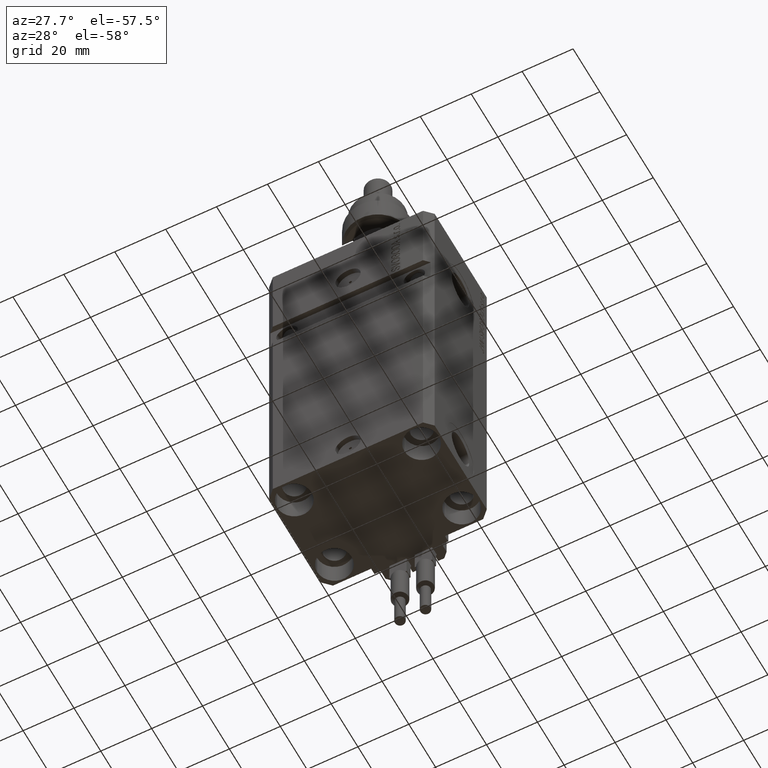
[diagram: clean part render]
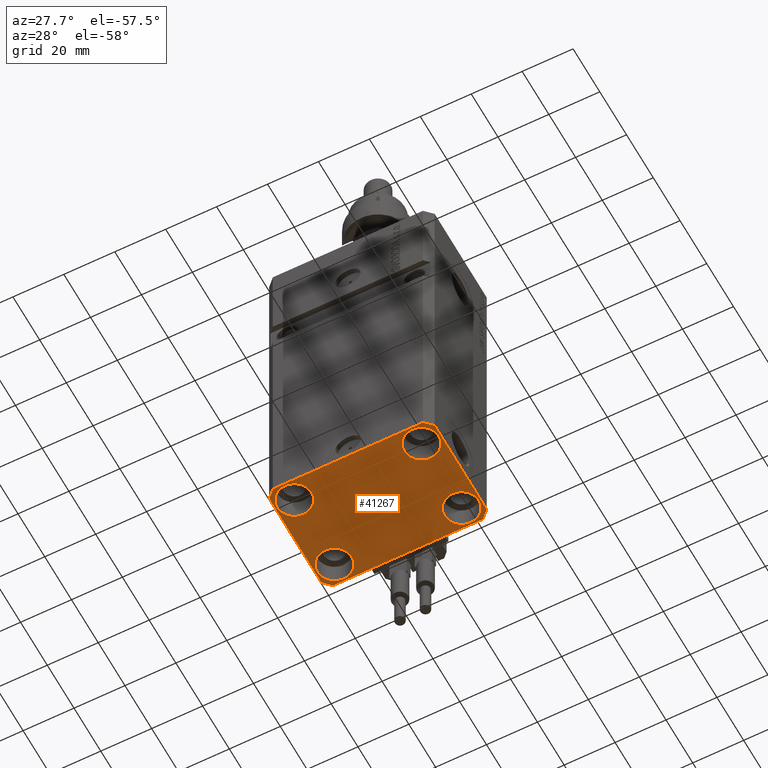
[diagram: same view with one face highlighted and labeled with its STEP entity id]
A machine part, auxiliary view. The second image highlights one B-rep face of the part: STEP entity #41267.
In plain terms, the highlighted planar face has unit normal (0, 0, 1).
Its self-contained STEP definition (entity closure, byte-faithful):
#817 = EDGE_CURVE ( 'NONE', #32567, #30131, #48013, .T. ) ;
#1035 = CARTESIAN_POINT ( 'NONE',  ( -18.24999999995845812, -15.00000000000000000, -137.0000000000000000 ) ) ;
#1851 = CARTESIAN_POINT ( 'NONE',  ( -29.49999999999650413, -22.49999999999949907, -137.0000000000000000 ) ) ;
#2044 = VECTOR ( 'NONE', #26355, 1000.000000000000000 ) ;
#2473 = EDGE_CURVE ( 'NONE', #33200, #46016, #12640, .T. ) ;
#2609 = FACE_BOUND ( 'NONE', #47169, .T. ) ;
#2794 = AXIS2_PLACEMENT_3D ( 'NONE', #22164, #37743, #21907 ) ;
#3281 = VERTEX_POINT ( 'NONE', #16011 ) ;
#4254 = DIRECTION ( 'NONE',  ( -0.000000000000000000, -0.000000000000000000, 1.000000000000000000 ) ) ;
#4341 = EDGE_CURVE ( 'NONE', #6777, #30525, #17689, .T. ) ;
#4423 = CARTESIAN_POINT ( 'NONE',  ( -29.49999999999650413, 22.49999999999949907, -137.0000000000000000 ) ) ;
#4661 = EDGE_LOOP ( 'NONE', ( #27975, #23051 ) ) ;
#4908 = CIRCLE ( 'NONE', #35583, 6.749999999977465137 ) ;
#5517 = CARTESIAN_POINT ( 'NONE',  ( -32.49999999999650413, 19.49999999999949907, -137.0000000000000000 ) ) ;
#6639 = ORIENTED_EDGE ( 'NONE', *, *, #20995, .F. ) ;
#6777 = VERTEX_POINT ( 'NONE', #46154 ) ;
#7810 = DIRECTION ( 'NONE',  ( 1.000000000000000000, 0.000000000000000000, 0.000000000000000000 ) ) ;
#7814 = DIRECTION ( 'NONE',  ( -0.000000000000000000, -0.000000000000000000, 1.000000000000000000 ) ) ;
#7933 = CARTESIAN_POINT ( 'NONE',  ( 18.25000000002253842, -15.00000000000000000, -137.0000000000000000 ) ) ;
#8071 = DIRECTION ( 'NONE',  ( -0.000000000000000000, -0.000000000000000000, 1.000000000000000000 ) ) ;
#8700 = DIRECTION ( 'NONE',  ( -0.000000000000000000, -0.000000000000000000, 1.000000000000000000 ) ) ;
#9271 = EDGE_CURVE ( 'NONE', #30525, #6777, #32933, .T. ) ;
#9643 = VERTEX_POINT ( 'NONE', #37431 ) ;
#10207 = AXIS2_PLACEMENT_3D ( 'NONE', #46213, #50360, #42832 ) ;
#10561 = AXIS2_PLACEMENT_3D ( 'NONE', #32325, #8700, #48147 ) ;
#10589 = CARTESIAN_POINT ( 'NONE',  ( -25.00000000000000355, 15.00000000000000000, -137.0000000000000000 ) ) ;
#11166 = FACE_BOUND ( 'NONE', #14789, .T. ) ;
#11856 = DIRECTION ( 'NONE',  ( 1.000000000000000000, 0.000000000000000000, 0.000000000000000000 ) ) ;
#11937 = DIRECTION ( 'NONE',  ( -0.000000000000000000, -0.000000000000000000, 1.000000000000000000 ) ) ;
#12640 = CIRCLE ( 'NONE', #39166, 6.750000000022533087 ) ;
#12748 = LINE ( 'NONE', #44410, #21607 ) ;
#13253 = DIRECTION ( 'NONE',  ( 1.334402673828349134E-14, 1.000000000000000000, 0.000000000000000000 ) ) ;
#14348 = DIRECTION ( 'NONE',  ( -1.000000000000000000, -2.352167425053553784E-16, 0.000000000000000000 ) ) ;
#14409 = CARTESIAN_POINT ( 'NONE',  ( 29.49999999999650413, -22.49999999999949196, -137.0000000000000000 ) ) ;
#14543 = FACE_OUTER_BOUND ( 'NONE', #28410, .T. ) ;
#14789 = EDGE_LOOP ( 'NONE', ( #17683, #26586 ) ) ;
#15240 = VERTEX_POINT ( 'NONE', #43290 ) ;
#16011 = CARTESIAN_POINT ( 'NONE',  ( 32.49999999999651124, -19.49999999999949196, -137.0000000000000000 ) ) ;
#16821 = DIRECTION ( 'NONE',  ( 1.000000000000000000, 0.000000000000000000, 0.000000000000000000 ) ) ;
#16881 = CARTESIAN_POINT ( 'NONE',  ( -25.00000000000000355, -15.00000000000000000, -137.0000000000000000 ) ) ;
#17683 = ORIENTED_EDGE ( 'NONE', *, *, #28587, .T. ) ;
#17689 = CIRCLE ( 'NONE', #2794, 6.749999999958452790 ) ;
#17724 = CARTESIAN_POINT ( 'NONE',  ( -31.75000000002253842, 15.00000000000000000, -137.0000000000000000 ) ) ;
#18695 = FACE_BOUND ( 'NONE', #4661, .T. ) ;
#18717 = AXIS2_PLACEMENT_3D ( 'NONE', #23636, #8071, #7810 ) ;
#19096 = ORIENTED_EDGE ( 'NONE', *, *, #31524, .T. ) ;
#19737 = EDGE_CURVE ( 'NONE', #36885, #32567, #22389, .T. ) ;
#20500 = DIRECTION ( 'NONE',  ( 1.000000000000000000, 0.000000000000000000, 0.000000000000000000 ) ) ;
#20716 = VECTOR ( 'NONE', #37569, 1000.000000000000114 ) ;
#20744 = DIRECTION ( 'NONE',  ( -0.7071067811865474617, -0.7071067811865474617, 0.000000000000000000 ) ) ;
#20995 = EDGE_CURVE ( 'NONE', #21653, #33206, #37405, .T. ) ;
#21250 = LINE ( 'NONE', #48256, #37391 ) ;
#21607 = VECTOR ( 'NONE', #13253, 1000.000000000000000 ) ;
#21653 = VERTEX_POINT ( 'NONE', #44382 ) ;
#21907 = DIRECTION ( 'NONE',  ( 1.000000000000000000, 0.000000000000000000, 0.000000000000000000 ) ) ;
#22164 = CARTESIAN_POINT ( 'NONE',  ( 24.99999999999999645, 15.00000000000000888, -137.0000000000000000 ) ) ;
#22389 = LINE ( 'NONE', #50172, #29693 ) ;
#22416 = CIRCLE ( 'NONE', #31542, 6.750000000041541881 ) ;
#23051 = ORIENTED_EDGE ( 'NONE', *, *, #50222, .T. ) ;
#23636 = CARTESIAN_POINT ( 'NONE',  ( 25.00000000000000355, -15.00000000000000000, -137.0000000000000000 ) ) ;
#25408 = DIRECTION ( 'NONE',  ( 0.000000000000000000, -1.000000000000000000, 0.000000000000000000 ) ) ;
#25765 = EDGE_CURVE ( 'NONE', #49620, #27657, #4908, .T. ) ;
#26355 = DIRECTION ( 'NONE',  ( 0.7071067811865483499, 0.7071067811865466846, 0.000000000000000000 ) ) ;
#26377 = ORIENTED_EDGE ( 'NONE', *, *, #37578, .F. ) ;
#26492 = ORIENTED_EDGE ( 'NONE', *, *, #4341, .T. ) ;
#26586 = ORIENTED_EDGE ( 'NONE', *, *, #48171, .T. ) ;
#26762 = ORIENTED_EDGE ( 'NONE', *, *, #27141, .F. ) ;
#26900 = AXIS2_PLACEMENT_3D ( 'NONE', #47494, #11937, #27767 ) ;
#27141 = EDGE_CURVE ( 'NONE', #50121, #21653, #37298, .T. ) ;
#27657 = VERTEX_POINT ( 'NONE', #34820 ) ;
#27767 = DIRECTION ( 'NONE',  ( 1.000000000000000000, 0.000000000000000000, 0.000000000000000000 ) ) ;
#27975 = ORIENTED_EDGE ( 'NONE', *, *, #25765, .T. ) ;
#28410 = EDGE_LOOP ( 'NONE', ( #51084, #26377, #44252, #44368, #6639, #26762, #40335, #46084 ) ) ;
#28587 = EDGE_CURVE ( 'NONE', #9643, #43623, #22416, .T. ) ;
#28863 = ORIENTED_EDGE ( 'NONE', *, *, #2473, .T. ) ;
#29003 = CARTESIAN_POINT ( 'NONE',  ( -25.00000000000000355, 15.00000000000000000, -137.0000000000000000 ) ) ;
#29093 = ORIENTED_EDGE ( 'NONE', *, *, #9271, .T. ) ;
#29544 = CARTESIAN_POINT ( 'NONE',  ( 29.49999999999707967, 22.49999999999951328, -137.0000000000000000 ) ) ;
#29693 = VECTOR ( 'NONE', #14348, 1000.000000000000000 ) ;
#29723 = VECTOR ( 'NONE', #33517, 1000.000000000000000 ) ;
#30131 = VERTEX_POINT ( 'NONE', #5517 ) ;
#30525 = VERTEX_POINT ( 'NONE', #47460 ) ;
#31508 = DIRECTION ( 'NONE',  ( 1.000000000000000000, 0.000000000000000000, 0.000000000000000000 ) ) ;
#31524 = EDGE_CURVE ( 'NONE', #46016, #33200, #39126, .T. ) ;
#31542 = AXIS2_PLACEMENT_3D ( 'NONE', #16881, #4254, #31508 ) ;
#32325 = CARTESIAN_POINT ( 'NONE',  ( 24.99999999999999645, 15.00000000000000888, -137.0000000000000000 ) ) ;
#32567 = VERTEX_POINT ( 'NONE', #48990 ) ;
#32933 = CIRCLE ( 'NONE', #10561, 6.749999999958452790 ) ;
#33200 = VERTEX_POINT ( 'NONE', #17724 ) ;
#33206 = VERTEX_POINT ( 'NONE', #37709 ) ;
#33517 = DIRECTION ( 'NONE',  ( 1.000000000000000000, 1.176083712526788232E-16, 0.000000000000000000 ) ) ;
#34304 = EDGE_LOOP ( 'NONE', ( #26492, #29093 ) ) ;
#34820 = CARTESIAN_POINT ( 'NONE',  ( 31.74999999997746869, -15.00000000000000000, -137.0000000000000000 ) ) ;
#35583 = AXIS2_PLACEMENT_3D ( 'NONE', #43375, #7814, #20500 ) ;
#36483 = EDGE_CURVE ( 'NONE', #3281, #15240, #12748, .T. ) ;
#36540 = DIRECTION ( 'NONE',  ( -0.000000000000000000, -0.000000000000000000, 1.000000000000000000 ) ) ;
#36885 = VERTEX_POINT ( 'NONE', #29544 ) ;
#37298 = LINE ( 'NONE', #45600, #20716 ) ;
#37391 = VECTOR ( 'NONE', #40214, 1000.000000000000000 ) ;
#37405 = LINE ( 'NONE', #1851, #29723 ) ;
#37431 = CARTESIAN_POINT ( 'NONE',  ( -31.75000000004154899, -15.00000000000000000, -137.0000000000000000 ) ) ;
#37569 = DIRECTION ( 'NONE',  ( 0.7071067811865474617, -0.7071067811865474617, 0.000000000000000000 ) ) ;
#37578 = EDGE_CURVE ( 'NONE', #15240, #36885, #21250, .T. ) ;
#37709 = CARTESIAN_POINT ( 'NONE',  ( 29.49999999999650413, -22.49999999999949196, -137.0000000000000000 ) ) ;
#37743 = DIRECTION ( 'NONE',  ( -0.000000000000000000, -0.000000000000000000, 1.000000000000000000 ) ) ;
#37917 = PLANE ( 'NONE',  #10207 ) ;
#38980 = EDGE_CURVE ( 'NONE', #30131, #50121, #45391, .T. ) ;
#39108 = DIRECTION ( 'NONE',  ( -0.000000000000000000, -0.000000000000000000, 1.000000000000000000 ) ) ;
#39126 = CIRCLE ( 'NONE', #49884, 6.750000000022533087 ) ;
#39166 = AXIS2_PLACEMENT_3D ( 'NONE', #10589, #39108, #11856 ) ;
#39249 = LINE ( 'NONE', #14409, #2044 ) ;
#39430 = CIRCLE ( 'NONE', #18717, 6.749999999977465137 ) ;
#39493 = CARTESIAN_POINT ( 'NONE',  ( -18.24999999997747224, 15.00000000000000000, -137.0000000000000000 ) ) ;
#40214 = DIRECTION ( 'NONE',  ( -0.7071067811865352493, 0.7071067811865597852, 0.000000000000000000 ) ) ;
#40335 = ORIENTED_EDGE ( 'NONE', *, *, #38980, .F. ) ;
#41267 = ADVANCED_FACE ( 'NONE', ( #11166, #18695, #42574, #2609, #14543 ), #37917, .F. ) ;
#41622 = VECTOR ( 'NONE', #25408, 1000.000000000000000 ) ;
#42574 = FACE_BOUND ( 'NONE', #34304, .T. ) ;
#42832 = DIRECTION ( 'NONE',  ( 1.000000000000000000, 0.000000000000000000, -0.000000000000000000 ) ) ;
#43290 = CARTESIAN_POINT ( 'NONE',  ( 32.49999999999702993, 19.49999999999945999, -137.0000000000000000 ) ) ;
#43375 = CARTESIAN_POINT ( 'NONE',  ( 25.00000000000000355, -15.00000000000000000, -137.0000000000000000 ) ) ;
#43623 = VERTEX_POINT ( 'NONE', #1035 ) ;
#44252 = ORIENTED_EDGE ( 'NONE', *, *, #36483, .F. ) ;
#44313 = CIRCLE ( 'NONE', #26900, 6.750000000041541881 ) ;
#44368 = ORIENTED_EDGE ( 'NONE', *, *, #47753, .F. ) ;
#44382 = CARTESIAN_POINT ( 'NONE',  ( -29.49999999999650413, -22.49999999999949907, -137.0000000000000000 ) ) ;
#44410 = CARTESIAN_POINT ( 'NONE',  ( 32.49999999999651124, -19.49999999999949196, -137.0000000000000000 ) ) ;
#45391 = LINE ( 'NONE', #49289, #41622 ) ;
#45600 = CARTESIAN_POINT ( 'NONE',  ( -32.49999999999650413, -19.49999999999949907, -137.0000000000000000 ) ) ;
#46016 = VERTEX_POINT ( 'NONE', #39493 ) ;
#46084 = ORIENTED_EDGE ( 'NONE', *, *, #817, .F. ) ;
#46154 = CARTESIAN_POINT ( 'NONE',  ( 18.25000000004154543, 15.00000000000000888, -137.0000000000000000 ) ) ;
#46213 = CARTESIAN_POINT ( 'NONE',  ( 0.000000000000000000, 0.000000000000000000, -137.0000000000000000 ) ) ;
#47169 = EDGE_LOOP ( 'NONE', ( #28863, #19096 ) ) ;
#47440 = VECTOR ( 'NONE', #20744, 1000.000000000000114 ) ;
#47460 = CARTESIAN_POINT ( 'NONE',  ( 31.74999999995845101, 15.00000000000000888, -137.0000000000000000 ) ) ;
#47494 = CARTESIAN_POINT ( 'NONE',  ( -25.00000000000000355, -15.00000000000000000, -137.0000000000000000 ) ) ;
#47753 = EDGE_CURVE ( 'NONE', #33206, #3281, #39249, .T. ) ;
#48013 = LINE ( 'NONE', #4423, #47440 ) ;
#48147 = DIRECTION ( 'NONE',  ( 1.000000000000000000, 0.000000000000000000, 0.000000000000000000 ) ) ;
#48171 = EDGE_CURVE ( 'NONE', #43623, #9643, #44313, .T. ) ;
#48256 = CARTESIAN_POINT ( 'NONE',  ( 32.49999999999702993, 19.49999999999945999, -137.0000000000000000 ) ) ;
#48990 = CARTESIAN_POINT ( 'NONE',  ( -29.49999999999650413, 22.49999999999949907, -137.0000000000000000 ) ) ;
#49289 = CARTESIAN_POINT ( 'NONE',  ( -32.49999999999650413, 19.49999999999949907, -137.0000000000000000 ) ) ;
#49365 = CARTESIAN_POINT ( 'NONE',  ( -32.49999999999650413, -19.49999999999949907, -137.0000000000000000 ) ) ;
#49620 = VERTEX_POINT ( 'NONE', #7933 ) ;
#49884 = AXIS2_PLACEMENT_3D ( 'NONE', #29003, #36540, #16821 ) ;
#50121 = VERTEX_POINT ( 'NONE', #49365 ) ;
#50172 = CARTESIAN_POINT ( 'NONE',  ( 29.49999999999707967, 22.49999999999951328, -137.0000000000000000 ) ) ;
#50222 = EDGE_CURVE ( 'NONE', #27657, #49620, #39430, .T. ) ;
#50360 = DIRECTION ( 'NONE',  ( 0.000000000000000000, 0.000000000000000000, 1.000000000000000000 ) ) ;
#51084 = ORIENTED_EDGE ( 'NONE', *, *, #19737, .F. ) ;